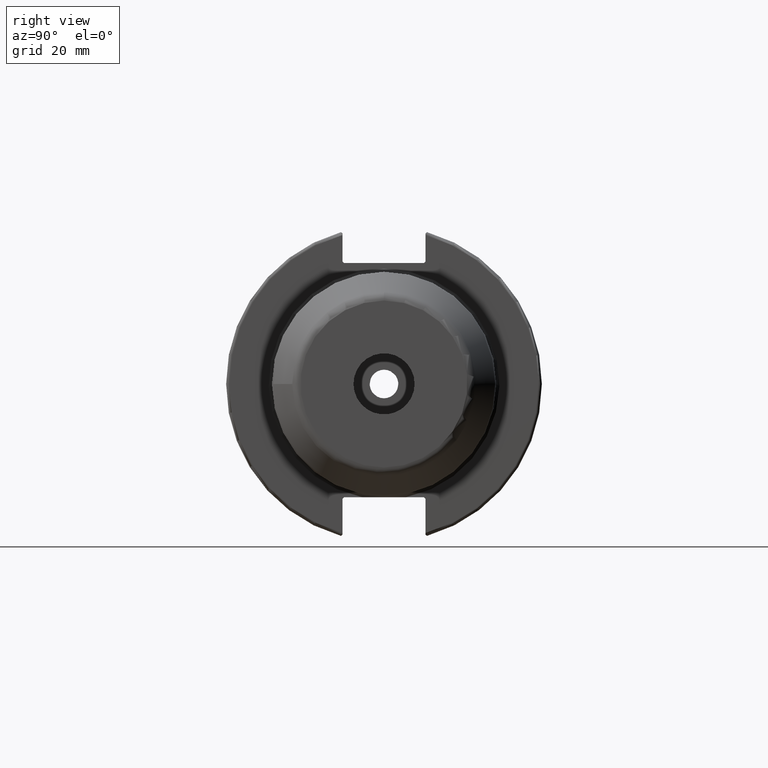
[diagram: clean part render]
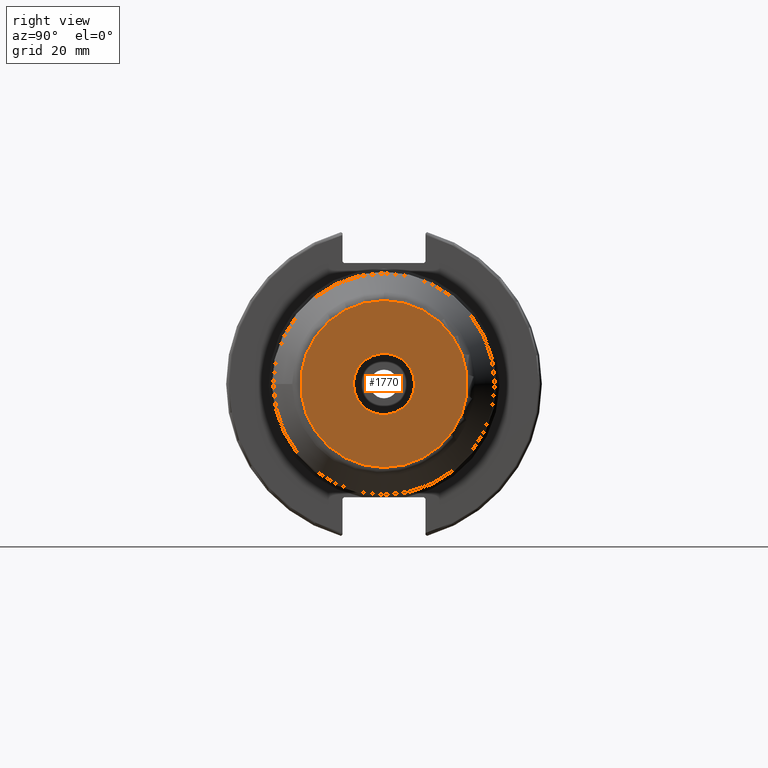
[diagram: same view with one face highlighted and labeled with its STEP entity id]
A machine part, right view. The second image highlights one B-rep face of the part: STEP entity #1770.
In plain terms, the highlighted planar face has unit normal (1, 0, 0).
Its self-contained STEP definition (entity closure, byte-faithful):
#33=PLANE('',#1948);
#106=FACE_BOUND('',#289,.T.);
#184=FACE_OUTER_BOUND('',#288,.T.);
#288=EDGE_LOOP('',(#1294));
#289=EDGE_LOOP('',(#1295));
#635=CIRCLE('',#1941,26.0179491924311);
#641=CIRCLE('',#1949,9.525);
#750=VERTEX_POINT('',#2880);
#755=VERTEX_POINT('',#2894);
#954=EDGE_CURVE('',#750,#750,#635,.T.);
#961=EDGE_CURVE('',#755,#755,#641,.T.);
#1294=ORIENTED_EDGE('',*,*,#954,.F.);
#1295=ORIENTED_EDGE('',*,*,#961,.F.);
#1770=ADVANCED_FACE('',(#184,#106),#33,.T.);
#1941=AXIS2_PLACEMENT_3D('',#2881,#2242,#2243);
#1948=AXIS2_PLACEMENT_3D('',#2893,#2257,#2258);
#1949=AXIS2_PLACEMENT_3D('',#2895,#2259,#2260);
#2242=DIRECTION('center_axis',(-1.,0.,0.));
#2243=DIRECTION('ref_axis',(0.,-1.,1.83697019872103E-16));
#2257=DIRECTION('center_axis',(1.,0.,0.));
#2258=DIRECTION('ref_axis',(0.,0.,-1.));
#2259=DIRECTION('center_axis',(1.,0.,0.));
#2260=DIRECTION('ref_axis',(0.,0.,-1.));
#2880=CARTESIAN_POINT('',(81.,-3.18627981988892E-15,26.0179491924311));
#2881=CARTESIAN_POINT('Origin',(81.,0.,0.));
#2893=CARTESIAN_POINT('Origin',(81.,9.525,0.));
#2894=CARTESIAN_POINT('',(81.,-9.525,-1.16647607618785E-15));
#2895=CARTESIAN_POINT('Origin',(81.,0.,0.));